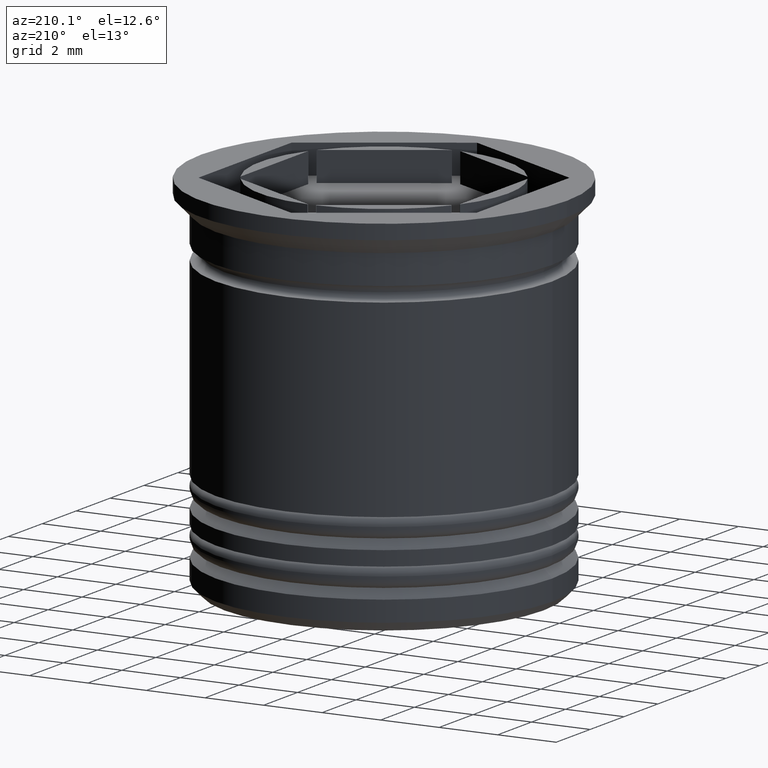
[diagram: clean part render]
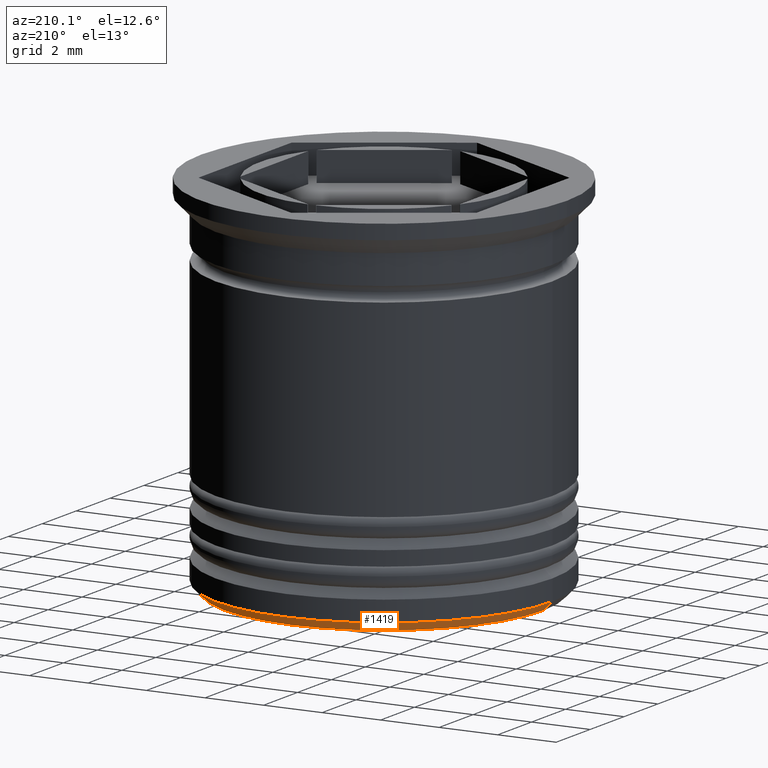
[diagram: same view with one face highlighted and labeled with its STEP entity id]
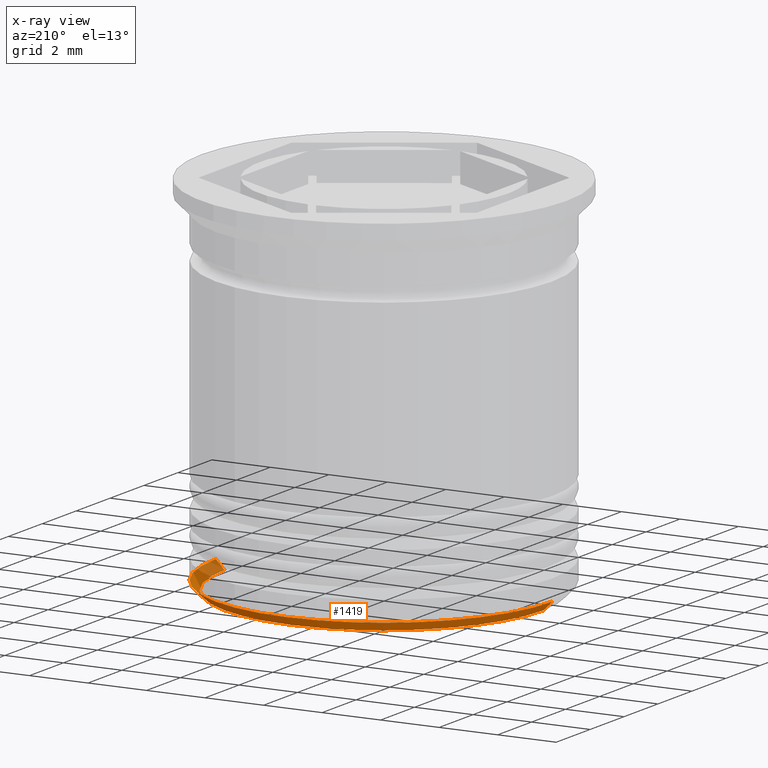
[diagram: x-ray of the same camera — body ghosted, the highlighted face saturated]
A machine part, auxiliary view. The second image highlights one B-rep face of the part: STEP entity #1419.
The next image is the same camera in x-ray: the body ghosted, the highlighted face saturated — about 13% of this face is hidden behind the body in this view.
In plain terms, the highlighted conical surface has half-angle 45 deg.
Its self-contained STEP definition (entity closure, byte-faithful):
#44 = DIRECTION ( 'NONE',  ( 0.7071067811865526798, 0.000000000000000000, 0.7071067811865424657 ) ) ;
#92 = EDGE_CURVE ( 'NONE', #1174, #384, #754, .T. ) ;
#141 = CARTESIAN_POINT ( 'NONE',  ( 5.750000000000001776, 0.000000000000000000, -12.19999999999999929 ) ) ;
#157 = CARTESIAN_POINT ( 'NONE',  ( 5.449999999999995737, 0.000000000000000000, -12.50000000000000000 ) ) ;
#289 = CARTESIAN_POINT ( 'NONE',  ( -5.750000000000001776, 7.041719095097282852E-16, -12.19999999999999929 ) ) ;
#369 = VERTEX_POINT ( 'NONE', #157 ) ;
#379 = VECTOR ( 'NONE', #44, 1000.000000000000000 ) ;
#384 = VERTEX_POINT ( 'NONE', #289 ) ;
#587 = EDGE_LOOP ( 'NONE', ( #861, #874, #1882, #638 ) ) ;
#603 = AXIS2_PLACEMENT_3D ( 'NONE', #1247, #808, #1426 ) ;
#638 = ORIENTED_EDGE ( 'NONE', *, *, #1041, .F. ) ;
#653 = FACE_OUTER_BOUND ( 'NONE', #587, .T. ) ;
#754 = CIRCLE ( 'NONE', #1921, 5.750000000000001776 ) ;
#781 = DIRECTION ( 'NONE',  ( -0.000000000000000000, -0.000000000000000000, 1.000000000000000000 ) ) ;
#808 = DIRECTION ( 'NONE',  ( 0.000000000000000000, 0.000000000000000000, -1.000000000000000000 ) ) ;
#848 = LINE ( 'NONE', #988, #977 ) ;
#861 = ORIENTED_EDGE ( 'NONE', *, *, #1057, .F. ) ;
#874 = ORIENTED_EDGE ( 'NONE', *, *, #941, .T. ) ;
#941 = EDGE_CURVE ( 'NONE', #965, #384, #848, .T. ) ;
#963 = DIRECTION ( 'NONE',  ( -0.000000000000000000, -0.000000000000000000, 1.000000000000000000 ) ) ;
#965 = VERTEX_POINT ( 'NONE', #1490 ) ;
#977 = VECTOR ( 'NONE', #1472, 1000.000000000000000 ) ;
#988 = CARTESIAN_POINT ( 'NONE',  ( -5.750000000000001776, 7.041719095097282852E-16, -12.19999999999999929 ) ) ;
#1041 = EDGE_CURVE ( 'NONE', #369, #1174, #1092, .T. ) ;
#1057 = EDGE_CURVE ( 'NONE', #965, #369, #1437, .T. ) ;
#1092 = LINE ( 'NONE', #1281, #379 ) ;
#1136 = CARTESIAN_POINT ( 'NONE',  ( 0.000000000000000000, 0.000000000000000000, -12.19999999999999929 ) ) ;
#1174 = VERTEX_POINT ( 'NONE', #141 ) ;
#1175 = CONICAL_SURFACE ( 'NONE', #1660, 5.750000000000001776, 0.7853981633974554954 ) ;
#1247 = CARTESIAN_POINT ( 'NONE',  ( 0.000000000000000000, 0.000000000000000000, -12.50000000000000000 ) ) ;
#1281 = CARTESIAN_POINT ( 'NONE',  ( 5.750000000000001776, 0.000000000000000000, -12.19999999999999929 ) ) ;
#1394 = DIRECTION ( 'NONE',  ( 1.000000000000000000, 0.000000000000000000, 0.000000000000000000 ) ) ;
#1419 = ADVANCED_FACE ( 'NONE', ( #653 ), #1175, .T. ) ;
#1426 = DIRECTION ( 'NONE',  ( -1.000000000000000000, 0.000000000000000000, 0.000000000000000000 ) ) ;
#1437 = CIRCLE ( 'NONE', #603, 5.449999999999995737 ) ;
#1472 = DIRECTION ( 'NONE',  ( -0.7071067811865526798, 8.659560562354995721E-17, 0.7071067811865424657 ) ) ;
#1490 = CARTESIAN_POINT ( 'NONE',  ( -5.449999999999995737, 6.858022075225175594E-16, -12.50000000000000000 ) ) ;
#1599 = CARTESIAN_POINT ( 'NONE',  ( 0.000000000000000000, 0.000000000000000000, -12.19999999999999929 ) ) ;
#1660 = AXIS2_PLACEMENT_3D ( 'NONE', #1599, #963, #1394 ) ;
#1853 = DIRECTION ( 'NONE',  ( -1.000000000000000000, 0.000000000000000000, 0.000000000000000000 ) ) ;
#1882 = ORIENTED_EDGE ( 'NONE', *, *, #92, .F. ) ;
#1921 = AXIS2_PLACEMENT_3D ( 'NONE', #1136, #781, #1853 ) ;